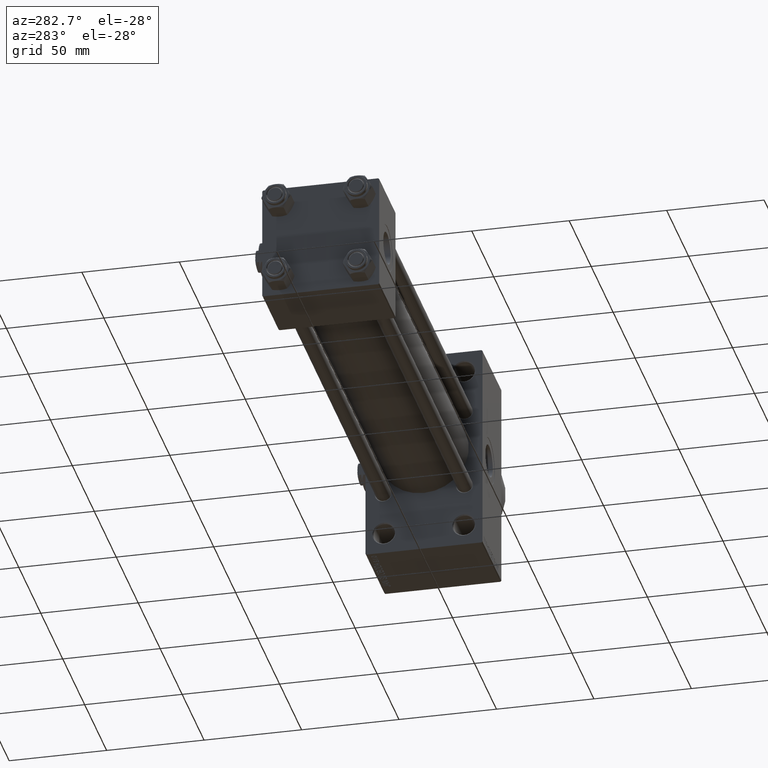
[diagram: clean part render]
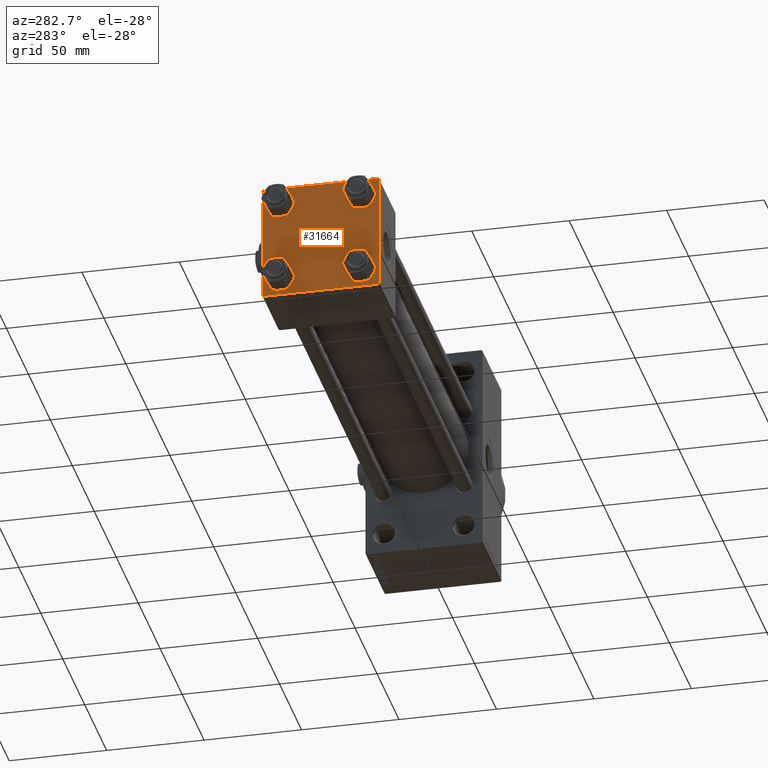
[diagram: same view with one face highlighted and labeled with its STEP entity id]
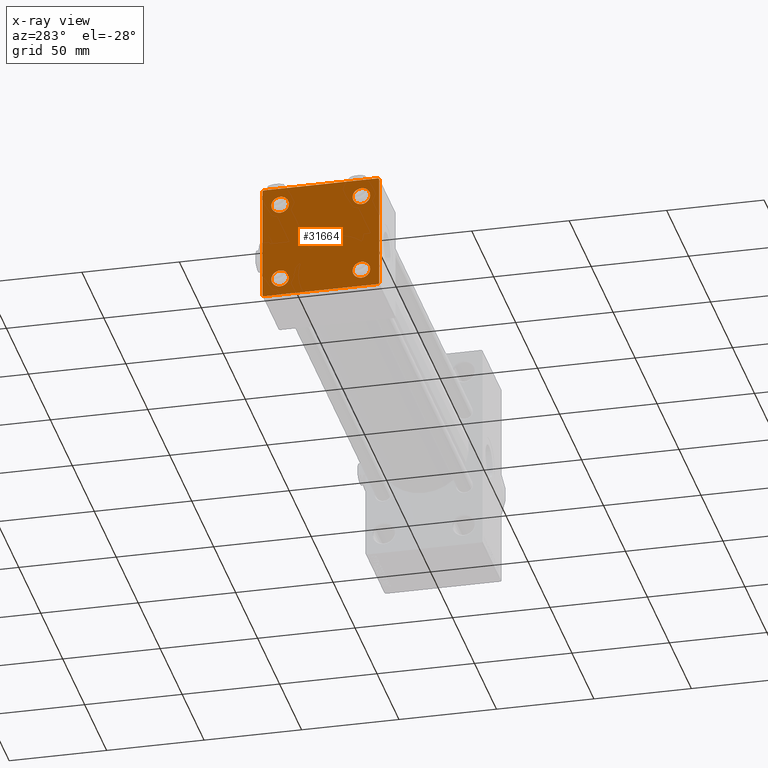
[diagram: x-ray of the same camera — body ghosted, the highlighted face saturated]
A machine part, auxiliary view. The second image highlights one B-rep face of the part: STEP entity #31664.
The next image is the same camera in x-ray: the body ghosted, the highlighted face saturated — about 0% of this face is hidden behind the body in this view.
In plain terms, the highlighted planar face has unit normal (-1, 0, 0).
Its self-contained STEP definition (entity closure, byte-faithful):
#717 = FACE_BOUND ( 'NONE', #43070, .T. ) ;
#1273 = CARTESIAN_POINT ( 'NONE',  ( 0.000000000000000000, 20.84999999999999787, 16.34999999999998366 ) ) ;
#1567 = DIRECTION ( 'NONE',  ( 1.000000000000000000, -0.000000000000000000, 0.000000000000000000 ) ) ;
#1580 = DIRECTION ( 'NONE',  ( 1.000000000000000000, -0.000000000000000000, 0.000000000000000000 ) ) ;
#2088 = VERTEX_POINT ( 'NONE', #24387 ) ;
#2381 = EDGE_CURVE ( 'NONE', #4970, #28957, #30585, .T. ) ;
#2902 = DIRECTION ( 'NONE',  ( 0.000000000000000000, 0.000000000000000000, 1.000000000000000000 ) ) ;
#3365 = ORIENTED_EDGE ( 'NONE', *, *, #15726, .T. ) ;
#3938 = CARTESIAN_POINT ( 'NONE',  ( 0.000000000000000000, 29.99999999999999289, -29.50000000000000000 ) ) ;
#4498 = PLANE ( 'NONE',  #41532 ) ;
#4679 = DIRECTION ( 'NONE',  ( 1.000000000000000000, -0.000000000000000000, 0.000000000000000000 ) ) ;
#4783 = ORIENTED_EDGE ( 'NONE', *, *, #10346, .F. ) ;
#4889 = CARTESIAN_POINT ( 'NONE',  ( 0.000000000000000000, 29.49999999999997868, -30.00000000000000000 ) ) ;
#4970 = VERTEX_POINT ( 'NONE', #5513 ) ;
#5351 = CARTESIAN_POINT ( 'NONE',  ( 0.000000000000000000, -20.84999999999999076, 20.85000000000000497 ) ) ;
#5513 = CARTESIAN_POINT ( 'NONE',  ( 0.000000000000000000, 20.84999999999999787, 25.35000000000001918 ) ) ;
#5836 = DIRECTION ( 'NONE',  ( 0.000000000000000000, 0.000000000000000000, 1.000000000000000000 ) ) ;
#6438 = AXIS2_PLACEMENT_3D ( 'NONE', #30648, #38443, #11520 ) ;
#6785 = ORIENTED_EDGE ( 'NONE', *, *, #2381, .T. ) ;
#8152 = CIRCLE ( 'NONE', #9758, 4.500000000000017764 ) ;
#8161 = CARTESIAN_POINT ( 'NONE',  ( 0.000000000000000000, -29.50000000000000000, -30.00000000000000711 ) ) ;
#9521 = ORIENTED_EDGE ( 'NONE', *, *, #28685, .T. ) ;
#9640 = VERTEX_POINT ( 'NONE', #3938 ) ;
#9758 = AXIS2_PLACEMENT_3D ( 'NONE', #17408, #1580, #21691 ) ;
#9889 = ORIENTED_EDGE ( 'NONE', *, *, #33138, .T. ) ;
#10346 = EDGE_CURVE ( 'NONE', #39195, #15952, #27880, .T. ) ;
#10659 = VECTOR ( 'NONE', #46471, 999.9999999999998863 ) ;
#10946 = CARTESIAN_POINT ( 'NONE',  ( 0.000000000000000000, -20.84999999999999076, 25.35000000000002274 ) ) ;
#10985 = DIRECTION ( 'NONE',  ( 1.000000000000000000, -0.000000000000000000, 0.000000000000000000 ) ) ;
#11045 = VECTOR ( 'NONE', #16275, 1000.000000000000114 ) ;
#11086 = ORIENTED_EDGE ( 'NONE', *, *, #22066, .T. ) ;
#11520 = DIRECTION ( 'NONE',  ( 0.000000000000000000, 0.000000000000000000, 1.000000000000000000 ) ) ;
#11656 = EDGE_CURVE ( 'NONE', #46145, #48545, #23432, .T. ) ;
#12057 = EDGE_LOOP ( 'NONE', ( #32179, #11086 ) ) ;
#12134 = VERTEX_POINT ( 'NONE', #8161 ) ;
#12525 = FACE_BOUND ( 'NONE', #25828, .T. ) ;
#12767 = CARTESIAN_POINT ( 'NONE',  ( 0.000000000000000000, -20.84999999999999076, 16.34999999999998721 ) ) ;
#13607 = DIRECTION ( 'NONE',  ( 1.000000000000000000, -0.000000000000000000, 0.000000000000000000 ) ) ;
#13628 = VERTEX_POINT ( 'NONE', #27661 ) ;
#13712 = DIRECTION ( 'NONE',  ( 1.000000000000000000, -0.000000000000000000, 0.000000000000000000 ) ) ;
#14635 = AXIS2_PLACEMENT_3D ( 'NONE', #32997, #13607, #28965 ) ;
#14752 = CIRCLE ( 'NONE', #21179, 4.500000000000017764 ) ;
#15572 = AXIS2_PLACEMENT_3D ( 'NONE', #32859, #13712, #29072 ) ;
#15606 = CARTESIAN_POINT ( 'NONE',  ( 0.000000000000000000, 29.99999999999999289, 30.00000000000000000 ) ) ;
#15726 = EDGE_CURVE ( 'NONE', #35859, #12134, #33273, .T. ) ;
#15952 = VERTEX_POINT ( 'NONE', #36672 ) ;
#16275 = DIRECTION ( 'NONE',  ( 0.000000000000000000, -0.7071067811865474617, 0.7071067811865474617 ) ) ;
#16426 = EDGE_CURVE ( 'NONE', #13628, #48738, #8152, .T. ) ;
#17408 = CARTESIAN_POINT ( 'NONE',  ( 0.000000000000000000, -20.84999999999999076, -20.85000000000000497 ) ) ;
#17479 = CARTESIAN_POINT ( 'NONE',  ( 0.000000000000000000, -20.84999999999999076, -20.85000000000000497 ) ) ;
#18792 = EDGE_CURVE ( 'NONE', #2088, #35186, #45985, .T. ) ;
#19840 = DIRECTION ( 'NONE',  ( -1.000000000000000000, 0.000000000000000000, -0.000000000000000000 ) ) ;
#20832 = LINE ( 'NONE', #35710, #41358 ) ;
#21179 = AXIS2_PLACEMENT_3D ( 'NONE', #17479, #21273, #2902 ) ;
#21273 = DIRECTION ( 'NONE',  ( 1.000000000000000000, -0.000000000000000000, 0.000000000000000000 ) ) ;
#21319 = CIRCLE ( 'NONE', #39803, 4.500000000000017764 ) ;
#21691 = DIRECTION ( 'NONE',  ( 0.000000000000000000, 0.000000000000000000, 1.000000000000000000 ) ) ;
#21940 = CARTESIAN_POINT ( 'NONE',  ( 0.000000000000000000, 29.99999999999999289, -30.00000000000000000 ) ) ;
#22066 = EDGE_CURVE ( 'NONE', #48738, #13628, #14752, .T. ) ;
#22797 = DIRECTION ( 'NONE',  ( 0.000000000000000000, 0.000000000000000000, 1.000000000000000000 ) ) ;
#23432 = LINE ( 'NONE', #46100, #47104 ) ;
#24089 = FACE_BOUND ( 'NONE', #32893, .T. ) ;
#24126 = ORIENTED_EDGE ( 'NONE', *, *, #43323, .T. ) ;
#24387 = CARTESIAN_POINT ( 'NONE',  ( 0.000000000000000000, 20.84999999999999787, -25.35000000000001918 ) ) ;
#24963 = LINE ( 'NONE', #37295, #41565 ) ;
#25723 = CARTESIAN_POINT ( 'NONE',  ( 0.000000000000000000, 20.84999999999999787, -16.34999999999998366 ) ) ;
#25828 = EDGE_LOOP ( 'NONE', ( #6785, #46205 ) ) ;
#26411 = EDGE_CURVE ( 'NONE', #39195, #39401, #20832, .T. ) ;
#27315 = ORIENTED_EDGE ( 'NONE', *, *, #18792, .T. ) ;
#27554 = CARTESIAN_POINT ( 'NONE',  ( 0.000000000000000000, 20.84999999999999787, -20.85000000000000142 ) ) ;
#27661 = CARTESIAN_POINT ( 'NONE',  ( 0.000000000000000000, -20.84999999999999076, -16.34999999999998721 ) ) ;
#27751 = AXIS2_PLACEMENT_3D ( 'NONE', #5351, #1567, #5836 ) ;
#27871 = CARTESIAN_POINT ( 'NONE',  ( 0.000000000000000000, 0.000000000000000000, 0.000000000000000000 ) ) ;
#27880 = LINE ( 'NONE', #32416, #40470 ) ;
#28405 = EDGE_CURVE ( 'NONE', #35186, #2088, #21319, .T. ) ;
#28496 = DIRECTION ( 'NONE',  ( 0.000000000000000000, 0.000000000000000000, -1.000000000000000000 ) ) ;
#28685 = EDGE_CURVE ( 'NONE', #49264, #32434, #29373, .T. ) ;
#28774 = CARTESIAN_POINT ( 'NONE',  ( 0.000000000000000000, -30.00000000000000000, 29.49999999999999289 ) ) ;
#28957 = VERTEX_POINT ( 'NONE', #1273 ) ;
#28965 = DIRECTION ( 'NONE',  ( 0.000000000000000000, 0.000000000000000000, 1.000000000000000000 ) ) ;
#29072 = DIRECTION ( 'NONE',  ( 0.000000000000000000, 0.000000000000000000, 1.000000000000000000 ) ) ;
#29373 = CIRCLE ( 'NONE', #27751, 4.500000000000017764 ) ;
#29453 = ORIENTED_EDGE ( 'NONE', *, *, #11656, .T. ) ;
#29605 = EDGE_LOOP ( 'NONE', ( #9889, #24126, #3365, #37148, #4783, #35790, #36029, #29453 ) ) ;
#29711 = ORIENTED_EDGE ( 'NONE', *, *, #49206, .T. ) ;
#30585 = CIRCLE ( 'NONE', #6438, 4.500000000000017764 ) ;
#30648 = CARTESIAN_POINT ( 'NONE',  ( 0.000000000000000000, 20.84999999999999787, 20.85000000000000142 ) ) ;
#30972 = CIRCLE ( 'NONE', #15572, 4.500000000000017764 ) ;
#31127 = LINE ( 'NONE', #42447, #10659 ) ;
#31158 = EDGE_CURVE ( 'NONE', #46145, #39401, #46071, .T. ) ;
#31664 = ADVANCED_FACE ( 'NONE', ( #24089, #39707, #717, #12525, #47263 ), #4498, .T. ) ;
#32179 = ORIENTED_EDGE ( 'NONE', *, *, #16426, .T. ) ;
#32327 = CIRCLE ( 'NONE', #45167, 4.500000000000017764 ) ;
#32416 = CARTESIAN_POINT ( 'NONE',  ( 0.000000000000000000, -30.00000000000000000, 29.99999999999999289 ) ) ;
#32434 = VERTEX_POINT ( 'NONE', #12767 ) ;
#32678 = DIRECTION ( 'NONE',  ( -0.000000000000000000, 0.7071067811865474617, 0.7071067811865474617 ) ) ;
#32859 = CARTESIAN_POINT ( 'NONE',  ( 0.000000000000000000, -20.84999999999999076, 20.85000000000000497 ) ) ;
#32893 = EDGE_LOOP ( 'NONE', ( #9521, #29711 ) ) ;
#32997 = CARTESIAN_POINT ( 'NONE',  ( 0.000000000000000000, 20.84999999999999787, -20.85000000000000142 ) ) ;
#33138 = EDGE_CURVE ( 'NONE', #48545, #9640, #24963, .T. ) ;
#33273 = LINE ( 'NONE', #21940, #42684 ) ;
#34259 = DIRECTION ( 'NONE',  ( 0.000000000000000000, -1.000000000000000000, -1.156482317317871725E-16 ) ) ;
#35175 = CARTESIAN_POINT ( 'NONE',  ( 0.000000000000000000, -29.75000000000001066, -29.75000000000001066 ) ) ;
#35186 = VERTEX_POINT ( 'NONE', #25723 ) ;
#35710 = CARTESIAN_POINT ( 'NONE',  ( -0.000000000000000000, -29.74999999999999645, 29.74999999999999645 ) ) ;
#35790 = ORIENTED_EDGE ( 'NONE', *, *, #26411, .T. ) ;
#35859 = VERTEX_POINT ( 'NONE', #4889 ) ;
#36029 = ORIENTED_EDGE ( 'NONE', *, *, #31158, .F. ) ;
#36672 = CARTESIAN_POINT ( 'NONE',  ( 0.000000000000000000, -30.00000000000000000, -29.50000000000001776 ) ) ;
#37148 = ORIENTED_EDGE ( 'NONE', *, *, #37217, .T. ) ;
#37217 = EDGE_CURVE ( 'NONE', #12134, #15952, #38201, .T. ) ;
#37295 = CARTESIAN_POINT ( 'NONE',  ( 0.000000000000000000, 29.99999999999999289, 30.00000000000000000 ) ) ;
#38201 = LINE ( 'NONE', #35175, #11045 ) ;
#38269 = DIRECTION ( 'NONE',  ( 0.000000000000000000, -1.000000000000000000, -1.156482317317871725E-16 ) ) ;
#38443 = DIRECTION ( 'NONE',  ( 1.000000000000000000, -0.000000000000000000, 0.000000000000000000 ) ) ;
#39195 = VERTEX_POINT ( 'NONE', #28774 ) ;
#39401 = VERTEX_POINT ( 'NONE', #47493 ) ;
#39490 = ORIENTED_EDGE ( 'NONE', *, *, #28405, .T. ) ;
#39707 = FACE_BOUND ( 'NONE', #12057, .T. ) ;
#39803 = AXIS2_PLACEMENT_3D ( 'NONE', #27554, #4679, #46701 ) ;
#40204 = DIRECTION ( 'NONE',  ( 0.000000000000000000, 0.000000000000000000, -1.000000000000000000 ) ) ;
#40271 = CARTESIAN_POINT ( 'NONE',  ( 0.000000000000000000, 29.99999999999999289, 29.50000000000000000 ) ) ;
#40470 = VECTOR ( 'NONE', #40204, 1000.000000000000000 ) ;
#41358 = VECTOR ( 'NONE', #32678, 1000.000000000000114 ) ;
#41532 = AXIS2_PLACEMENT_3D ( 'NONE', #27871, #19840, #43734 ) ;
#41565 = VECTOR ( 'NONE', #28496, 1000.000000000000000 ) ;
#42292 = EDGE_CURVE ( 'NONE', #28957, #4970, #32327, .T. ) ;
#42447 = CARTESIAN_POINT ( 'NONE',  ( 0.000000000000000000, 29.74999999999957723, -29.75000000000040501 ) ) ;
#42581 = DIRECTION ( 'NONE',  ( 0.000000000000000000, 0.7071067811865474617, -0.7071067811865474617 ) ) ;
#42684 = VECTOR ( 'NONE', #34259, 1000.000000000000000 ) ;
#43070 = EDGE_LOOP ( 'NONE', ( #39490, #27315 ) ) ;
#43323 = EDGE_CURVE ( 'NONE', #9640, #35859, #31127, .T. ) ;
#43504 = CARTESIAN_POINT ( 'NONE',  ( 0.000000000000000000, -20.84999999999999076, -25.35000000000002274 ) ) ;
#43734 = DIRECTION ( 'NONE',  ( -0.000000000000000000, 0.000000000000000000, 1.000000000000000000 ) ) ;
#44219 = CARTESIAN_POINT ( 'NONE',  ( 0.000000000000000000, 20.84999999999999787, 20.85000000000000142 ) ) ;
#44726 = VECTOR ( 'NONE', #38269, 1000.000000000000000 ) ;
#45167 = AXIS2_PLACEMENT_3D ( 'NONE', #44219, #10985, #22797 ) ;
#45985 = CIRCLE ( 'NONE', #14635, 4.500000000000017764 ) ;
#46071 = LINE ( 'NONE', #15606, #44726 ) ;
#46100 = CARTESIAN_POINT ( 'NONE',  ( 0.000000000000000000, 29.74999999999999645, 29.74999999999999645 ) ) ;
#46145 = VERTEX_POINT ( 'NONE', #48754 ) ;
#46205 = ORIENTED_EDGE ( 'NONE', *, *, #42292, .T. ) ;
#46471 = DIRECTION ( 'NONE',  ( -0.000000000000000000, -0.7071067811865574537, -0.7071067811865376918 ) ) ;
#46701 = DIRECTION ( 'NONE',  ( 0.000000000000000000, 0.000000000000000000, 1.000000000000000000 ) ) ;
#47104 = VECTOR ( 'NONE', #42581, 1000.000000000000114 ) ;
#47263 = FACE_OUTER_BOUND ( 'NONE', #29605, .T. ) ;
#47493 = CARTESIAN_POINT ( 'NONE',  ( 0.000000000000000000, -29.49999999999998579, 29.99999999999999289 ) ) ;
#48545 = VERTEX_POINT ( 'NONE', #40271 ) ;
#48738 = VERTEX_POINT ( 'NONE', #43504 ) ;
#48754 = CARTESIAN_POINT ( 'NONE',  ( 0.000000000000000000, 29.49999999999999289, 30.00000000000000000 ) ) ;
#49206 = EDGE_CURVE ( 'NONE', #32434, #49264, #30972, .T. ) ;
#49264 = VERTEX_POINT ( 'NONE', #10946 ) ;